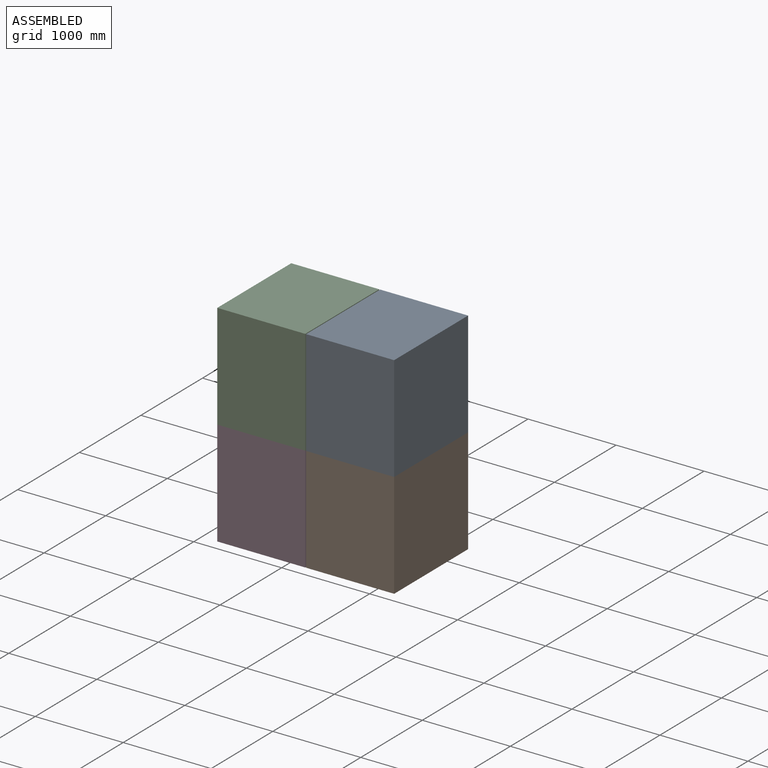
[diagram: assembled view]
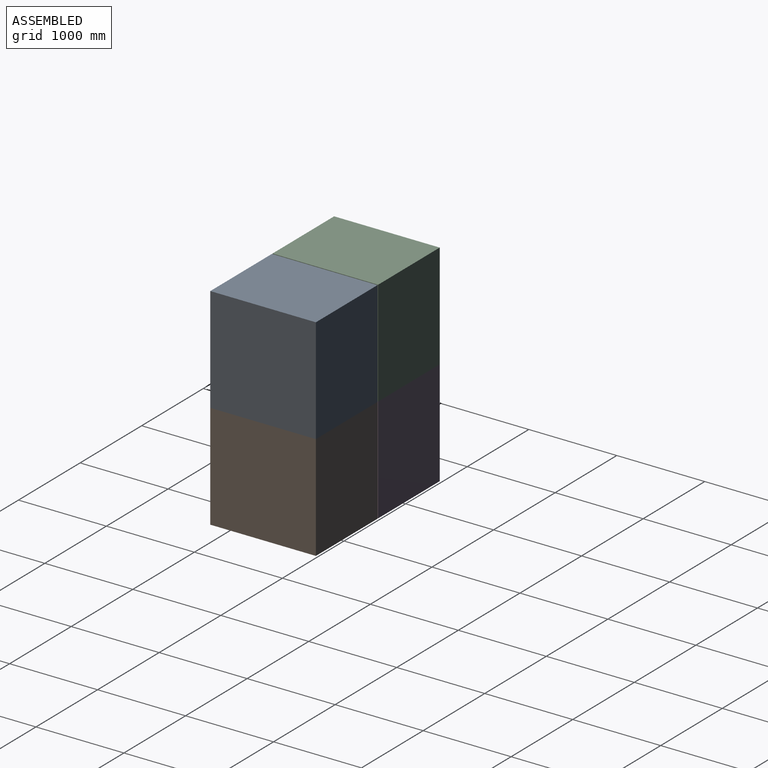
[diagram: assembled view, second angle]
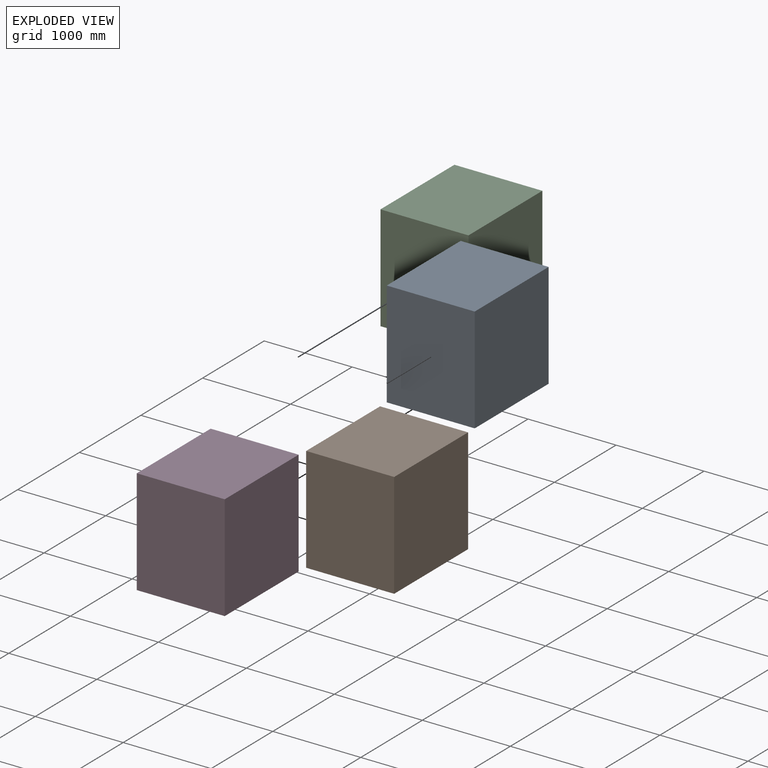
[diagram: exploded view]
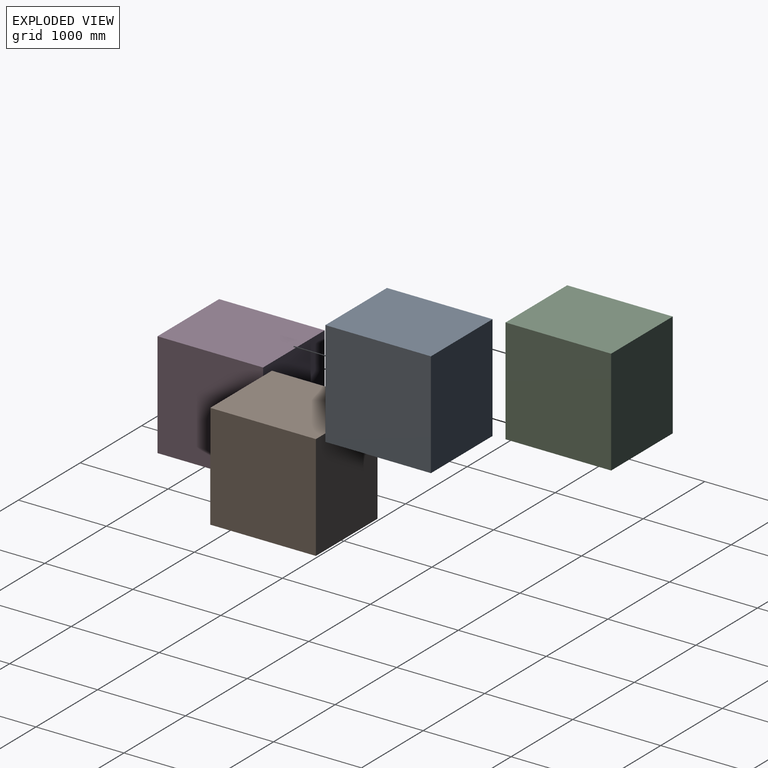
[diagram: exploded view, second angle]
ASSEMBLY  parts=4 mates=3
PART A: 6 faces, bbox 1000x1200x1200 mm
  f0: plane 1200x1000mm, normal (0,1,0), area 1200000mm2, adj f1,f3,f4,f5
  f1: plane 1200x1200mm, normal (-1,0,0), area 1440000mm2, adj f0,f2,f4,f5
  f2: plane 1200x1000mm, normal (0,-1,0), area 1200000mm2, adj f1,f3,f4,f5
  f3: plane 1200x1200mm, normal (1,0,0), area 1440000mm2, adj f0,f2,f4,f5
  f4: plane 1200x1000mm, normal (0,0,1), area 1200000mm2, adj f0,f1,f2,f3
  f5: plane 1200x1000mm, normal (0,0,-1), area 1200000mm2, adj f0,f1,f2,f3
PART B: same geometry as A
PART C: same geometry as A
PART D: same geometry as A
PLACE A t=(-6285.27,14133.78,2405.84)mm
PLACE B t=(-6285.27,14133.78,1205.84)mm
PLACE C t=(-7295.27,14133.78,2405.84)mm
PLACE D t=(-7295.27,14133.78,1205.84)mm
MATE fastened A.f0 <-> B.f0  axis (0,1,0) through (-6018.5,2768.79,2405.84)mm
MATE fastened B.f0 <-> D.f0  axis (0,1,0) through (-6018.5,2768.79,1205.84)mm
MATE fastened C.f0 <-> D.f0  axis (0,1,0) through (-7028.5,2768.79,2405.84)mm
